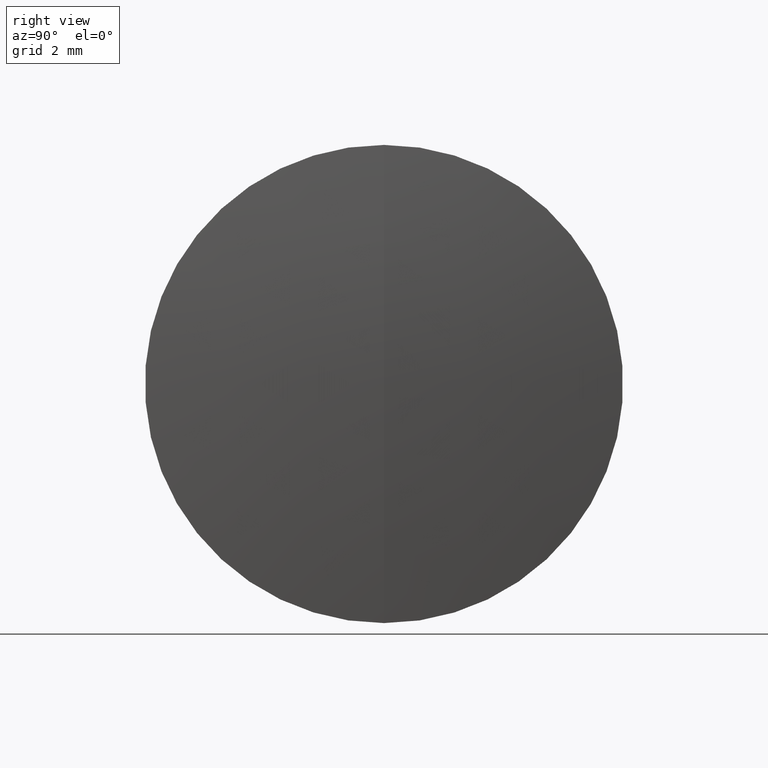
[diagram: clean part render]
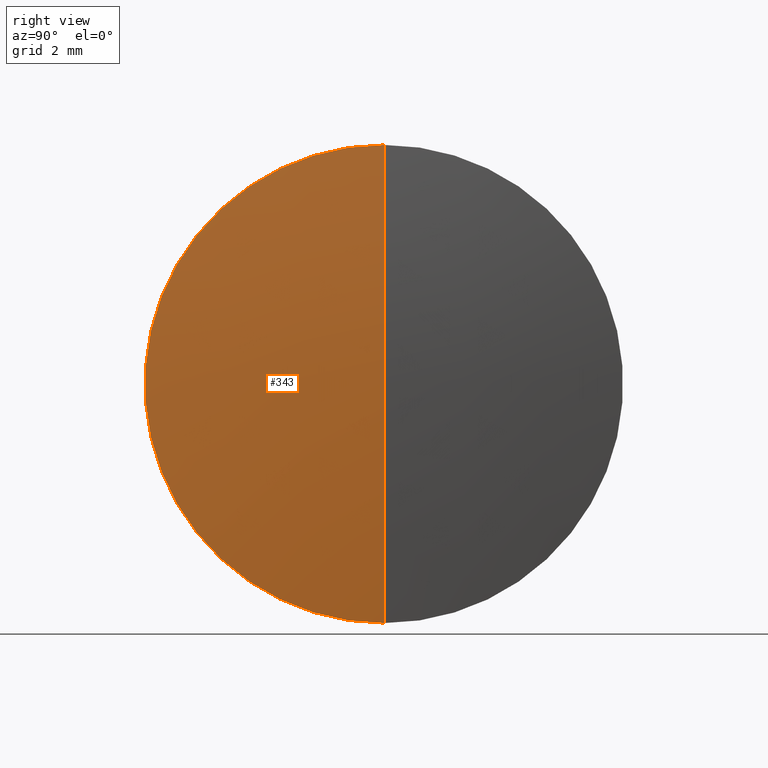
[diagram: same view with one face highlighted and labeled with its STEP entity id]
A machine part, right view. The second image highlights one B-rep face of the part: STEP entity #343.
In plain terms, the highlighted spherical surface has radius 66.68 mm.
Its self-contained STEP definition (entity closure, byte-faithful):
#15 = DIRECTION ( 'NONE',  ( 0.0000000000000000000, 0.0000000000000000000, -1.000000000000000000 ) ) ;
#28 = CIRCLE ( 'NONE', #207, 7.999999999999992900 ) ;
#38 = CIRCLE ( 'NONE', #86, 66.68000000000000700 ) ;
#48 = DIRECTION ( 'NONE',  ( 0.0000000000000000000, 1.000000000000000000, 0.0000000000000000000 ) ) ;
#61 = SPHERICAL_SURFACE ( 'NONE', #342, 66.68000000000000700 ) ;
#68 = DIRECTION ( 'NONE',  ( 0.0000000000000000000, 0.0000000000000000000, 1.000000000000000000 ) ) ;
#82 = CARTESIAN_POINT ( 'NONE',  ( 21.03539995463979300, 9.797174393178819700E-016, -7.999999999999992900 ) ) ;
#86 = AXIS2_PLACEMENT_3D ( 'NONE', #241, #146, #184 ) ;
#92 = CARTESIAN_POINT ( 'NONE',  ( 21.03539995463979300, 0.0000000000000000000, 0.0000000000000000000 ) ) ;
#119 = ORIENTED_EDGE ( 'NONE', *, *, #324, .F. ) ;
#128 = CARTESIAN_POINT ( 'NONE',  ( 21.51704347957313200, 0.0000000000000000000, 4.082972428357275800E-015 ) ) ;
#143 = ORIENTED_EDGE ( 'NONE', *, *, #155, .F. ) ;
#146 = DIRECTION ( 'NONE',  ( -0.0000000000000000000, 1.000000000000000000, 1.224646799147353200E-016 ) ) ;
#153 = VERTEX_POINT ( 'NONE', #262 ) ;
#155 = EDGE_CURVE ( 'NONE', #323, #272, #38, .T. ) ;
#163 = CARTESIAN_POINT ( 'NONE',  ( -45.16295652042687400, 0.0000000000000000000, 0.0000000000000000000 ) ) ;
#168 = FACE_OUTER_BOUND ( 'NONE', #178, .T. ) ;
#178 = EDGE_LOOP ( 'NONE', ( #143, #294, #119 ) ) ;
#184 = DIRECTION ( 'NONE',  ( 0.0000000000000000000, -1.224646799147353200E-016, 1.000000000000000000 ) ) ;
#207 = AXIS2_PLACEMENT_3D ( 'NONE', #92, #251, #68 ) ;
#218 = DIRECTION ( 'NONE',  ( 0.0000000000000000000, 0.0000000000000000000, 1.000000000000000000 ) ) ;
#241 = CARTESIAN_POINT ( 'NONE',  ( -45.16295652042687400, 0.0000000000000000000, 0.0000000000000000000 ) ) ;
#251 = DIRECTION ( 'NONE',  ( -1.000000000000000000, -0.0000000000000000000, -0.0000000000000000000 ) ) ;
#262 = CARTESIAN_POINT ( 'NONE',  ( 21.03539995463979300, 0.0000000000000000000, 7.999999999999992900 ) ) ;
#265 = CIRCLE ( 'NONE', #275, 66.68000000000000700 ) ;
#272 = VERTEX_POINT ( 'NONE', #82 ) ;
#275 = AXIS2_PLACEMENT_3D ( 'NONE', #163, #334, #15 ) ;
#284 = CARTESIAN_POINT ( 'NONE',  ( -45.16295652042687400, 0.0000000000000000000, 0.0000000000000000000 ) ) ;
#294 = ORIENTED_EDGE ( 'NONE', *, *, #341, .T. ) ;
#323 = VERTEX_POINT ( 'NONE', #128 ) ;
#324 = EDGE_CURVE ( 'NONE', #272, #153, #28, .T. ) ;
#334 = DIRECTION ( 'NONE',  ( 0.0000000000000000000, -1.000000000000000000, 0.0000000000000000000 ) ) ;
#341 = EDGE_CURVE ( 'NONE', #323, #153, #265, .T. ) ;
#342 = AXIS2_PLACEMENT_3D ( 'NONE', #284, #48, #218 ) ;
#343 = ADVANCED_FACE ( 'NONE', ( #168 ), #61, .T. ) ;